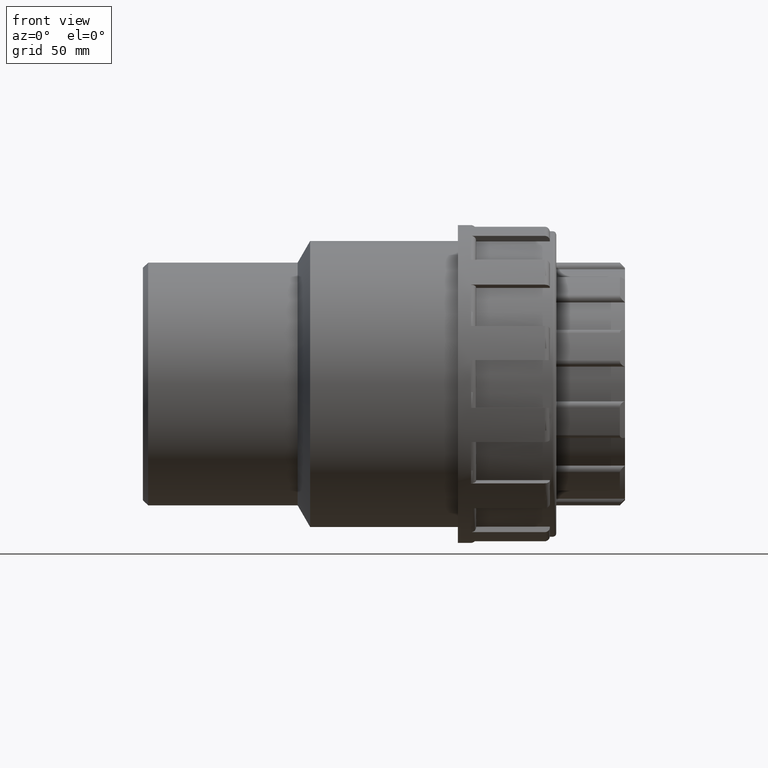
[diagram: clean part render]
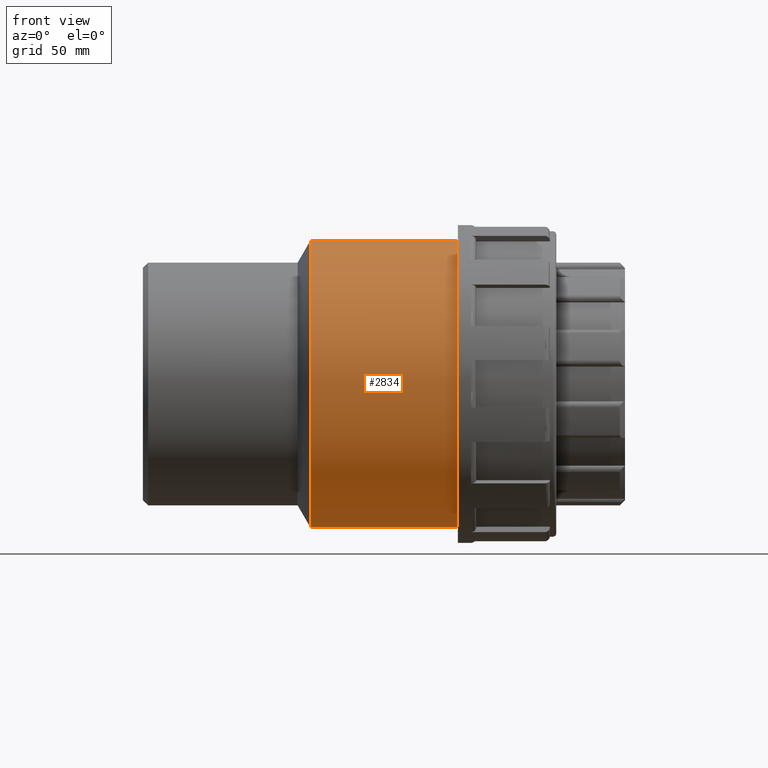
[diagram: same view with one face highlighted and labeled with its STEP entity id]
A machine part, front view. The second image highlights one B-rep face of the part: STEP entity #2834.
In plain terms, the highlighted cylindrical surface (bore or boss wall) has radius 74.25 mm, axis along (1, 0, 0).
Its self-contained STEP definition (entity closure, byte-faithful):
#33=FACE_BOUND('',#496,.T.);
#34=FACE_BOUND('',#497,.T.);
#311=FACE_OUTER_BOUND('',#495,.T.);
#495=EDGE_LOOP('',(#2607));
#496=EDGE_LOOP('',(#2608));
#497=EDGE_LOOP('',(#2609));
#687=CIRCLE('',#3183,74.25);
#688=CIRCLE('',#3185,74.25);
#1039=B_SPLINE_CURVE_WITH_KNOTS('',3,(#4658,#4659,#4660,#4661,#4662,#4663,
#4664,#4665,#4666,#4667,#4668,#4669,#4670,#4671,#4672,#4673,#4674,#4675,
#4676,#4677,#4678,#4679,#4680,#4681,#4682,#4683,#4684,#4685,#4686,#4687,
#4688,#4689,#4690,#4691,#4692,#4693,#4694,#4695,#4696,#4697,#4698,#4699,
#4700,#4701,#4702,#4703,#4704,#4705,#4706,#4707,#4708,#4709,#4710,#4711,
#4712,#4713,#4714,#4715,#4716,#4717,#4718,#4719,#4720,#4721,#4722,#4723),
 .UNSPECIFIED.,.T.,.F.,(4,2,2,2,2,2,2,2,2,2,2,2,2,2,2,2,2,2,2,2,2,2,2,2,
2,2,2,2,2,2,2,2,4),(0.,0.470173499264312,0.940346998528624,1.41052049779294,
1.88069399705725,2.35064942948979,2.82060486192233,3.29056029435487,3.76051572678742,
4.23047115921996,4.7004265916525,5.17038202408504,5.64033745651759,6.1105109557819,
6.58068445504621,7.05085795431052,7.52103145357483,7.99120495283914,8.46137845210346,
8.93155195136777,9.40172545063208,9.87168088306462,10.3416363154972,10.8115917479297,
11.2815471803622,11.7515026127948,12.2214580452273,12.6914134776599,13.1613689100924,
13.6315424093567,14.101715908621,14.5718894078854,15.0420629071497),
 .UNSPECIFIED.);
#1203=VERTEX_POINT('',#4657);
#1360=VERTEX_POINT('',#5625);
#1361=VERTEX_POINT('',#5628);
#1549=EDGE_CURVE('',#1203,#1203,#1039,.T.);
#1778=EDGE_CURVE('',#1360,#1360,#687,.T.);
#1779=EDGE_CURVE('',#1361,#1361,#688,.T.);
#2607=ORIENTED_EDGE('',*,*,#1779,.F.);
#2608=ORIENTED_EDGE('',*,*,#1549,.T.);
#2609=ORIENTED_EDGE('',*,*,#1778,.T.);
#2671=CYLINDRICAL_SURFACE('',#3184,74.25);
#2834=ADVANCED_FACE('',(#311,#33,#34),#2671,.T.);
#3183=AXIS2_PLACEMENT_3D('',#5626,#4042,#4043);
#3184=AXIS2_PLACEMENT_3D('',#5627,#4044,#4045);
#3185=AXIS2_PLACEMENT_3D('',#5629,#4046,#4047);
#4042=DIRECTION('center_axis',(1.,0.,0.));
#4043=DIRECTION('ref_axis',(0.,0.,-1.));
#4044=DIRECTION('center_axis',(1.,0.,0.));
#4045=DIRECTION('ref_axis',(0.,1.,0.));
#4046=DIRECTION('center_axis',(1.,0.,0.));
#4047=DIRECTION('ref_axis',(0.,0.,-1.));
#4657=CARTESIAN_POINT('',(-8.32667268468867E-16,70.0035713374682,-24.75));
#4658=CARTESIAN_POINT('Ctrl Pts',(-2.77555756156289E-16,70.0035713374682,
-24.75));
#4659=CARTESIAN_POINT('Ctrl Pts',(1.56724499754771,70.0035713374682,-24.75));
#4660=CARTESIAN_POINT('Ctrl Pts',(3.18376970608378,70.0576647732943,-24.5987409437415));
#4661=CARTESIAN_POINT('Ctrl Pts',(6.39124199787783,70.2765108544942,-23.9663612477396));
#4662=CARTESIAN_POINT('Ctrl Pts',(7.98224068340491,70.4410415860146,-23.4854230386154));
#4663=CARTESIAN_POINT('Ctrl Pts',(11.0271243637703,70.8506990059166,-22.2189973220399));
#4664=CARTESIAN_POINT('Ctrl Pts',(12.4836636260569,71.0957087458684,-21.4325052408166));
#4665=CARTESIAN_POINT('Ctrl Pts',(15.1744177632563,71.6171829848294,-19.6196632020577));
#4666=CARTESIAN_POINT('Ctrl Pts',(16.4086295615542,71.8931169431347,-18.5931561071799));
#4667=CARTESIAN_POINT('Ctrl Pts',(18.5926495146311,72.422819587546,-16.409136154103));
#4668=CARTESIAN_POINT('Ctrl Pts',(19.6190956243013,72.6956131550973,-15.1751641685197));
#4669=CARTESIAN_POINT('Ctrl Pts',(21.432158273023,73.2057420358075,-12.4842746084587));
#4670=CARTESIAN_POINT('Ctrl Pts',(22.218909564758,73.4426132055707,-11.0273598585134));
#4671=CARTESIAN_POINT('Ctrl Pts',(23.485626131503,73.8357103291938,-7.9817278836486));
#4672=CARTESIAN_POINT('Ctrl Pts',(23.9665974161252,73.9919494478968,-6.39036766522285));
#4673=CARTESIAN_POINT('Ctrl Pts',(24.5988714303945,74.1991594766344,-3.18278415211122));
#4674=CARTESIAN_POINT('Ctrl Pts',(24.75,74.25,-1.56651810810847));
#4675=CARTESIAN_POINT('Ctrl Pts',(24.75,74.25,1.56651810810847));
#4676=CARTESIAN_POINT('Ctrl Pts',(24.5988714303945,74.1991594766344,3.18278415211122));
#4677=CARTESIAN_POINT('Ctrl Pts',(23.9665974161252,73.9919494478968,6.39036766522285));
#4678=CARTESIAN_POINT('Ctrl Pts',(23.485626131503,73.8357103291938,7.9817278836486));
#4679=CARTESIAN_POINT('Ctrl Pts',(22.218909564758,73.4426132055707,11.0273598585134));
#4680=CARTESIAN_POINT('Ctrl Pts',(21.432158273023,73.2057420358075,12.4842746084587));
#4681=CARTESIAN_POINT('Ctrl Pts',(19.6190956243013,72.6956131550973,15.1751641685197));
#4682=CARTESIAN_POINT('Ctrl Pts',(18.5926495146311,72.422819587546,16.409136154103));
#4683=CARTESIAN_POINT('Ctrl Pts',(16.4086295615542,71.8931169431347,18.5931561071799));
#4684=CARTESIAN_POINT('Ctrl Pts',(15.1744177632563,71.6171829848294,19.6196632020577));
#4685=CARTESIAN_POINT('Ctrl Pts',(12.4836636260569,71.0957087458684,21.4325052408166));
#4686=CARTESIAN_POINT('Ctrl Pts',(11.0271243637703,70.8506990059166,22.2189973220399));
#4687=CARTESIAN_POINT('Ctrl Pts',(7.98224068340491,70.4410415860146,23.4854230386154));
#4688=CARTESIAN_POINT('Ctrl Pts',(6.39124199787782,70.2765108544942,23.9663612477396));
#4689=CARTESIAN_POINT('Ctrl Pts',(3.18376970608377,70.0576647732943,24.5987409437415));
#4690=CARTESIAN_POINT('Ctrl Pts',(1.56724499754771,70.0035713374682,24.75));
#4691=CARTESIAN_POINT('Ctrl Pts',(-1.56724499754771,70.0035713374682,24.75));
#4692=CARTESIAN_POINT('Ctrl Pts',(-3.18376970608377,70.0576647732943,24.5987409437415));
#4693=CARTESIAN_POINT('Ctrl Pts',(-6.39124199787782,70.2765108544942,23.9663612477396));
#4694=CARTESIAN_POINT('Ctrl Pts',(-7.98224068340491,70.4410415860146,23.4854230386154));
#4695=CARTESIAN_POINT('Ctrl Pts',(-11.0271243637703,70.8506990059166,22.2189973220399));
#4696=CARTESIAN_POINT('Ctrl Pts',(-12.4836636260569,71.0957087458684,21.4325052408166));
#4697=CARTESIAN_POINT('Ctrl Pts',(-15.1744177632563,71.6171829848294,19.6196632020577));
#4698=CARTESIAN_POINT('Ctrl Pts',(-16.4086295615542,71.8931169431347,18.5931561071799));
#4699=CARTESIAN_POINT('Ctrl Pts',(-18.5926495146311,72.422819587546,16.409136154103));
#4700=CARTESIAN_POINT('Ctrl Pts',(-19.6190956243013,72.6956131550973,15.1751641685197));
#4701=CARTESIAN_POINT('Ctrl Pts',(-21.432158273023,73.2057420358075,12.4842746084586));
#4702=CARTESIAN_POINT('Ctrl Pts',(-22.218909564758,73.4426132055707,11.0273598585134));
#4703=CARTESIAN_POINT('Ctrl Pts',(-23.485626131503,73.8357103291938,7.9817278836486));
#4704=CARTESIAN_POINT('Ctrl Pts',(-23.9665974161252,73.9919494478968,6.39036766522285));
#4705=CARTESIAN_POINT('Ctrl Pts',(-24.5988714303945,74.1991594766344,3.18278415211122));
#4706=CARTESIAN_POINT('Ctrl Pts',(-24.75,74.25,1.56651810810848));
#4707=CARTESIAN_POINT('Ctrl Pts',(-24.75,74.25,-1.56651810810847));
#4708=CARTESIAN_POINT('Ctrl Pts',(-24.5988714303945,74.1991594766344,-3.18278415211122));
#4709=CARTESIAN_POINT('Ctrl Pts',(-23.9665974161252,73.9919494478968,-6.39036766522284));
#4710=CARTESIAN_POINT('Ctrl Pts',(-23.485626131503,73.8357103291938,-7.98172788364859));
#4711=CARTESIAN_POINT('Ctrl Pts',(-22.218909564758,73.4426132055707,-11.0273598585134));
#4712=CARTESIAN_POINT('Ctrl Pts',(-21.4321582730231,73.2057420358075,-12.4842746084586));
#4713=CARTESIAN_POINT('Ctrl Pts',(-19.6190956243013,72.6956131550973,-15.1751641685197));
#4714=CARTESIAN_POINT('Ctrl Pts',(-18.5926495146311,72.422819587546,-16.409136154103));
#4715=CARTESIAN_POINT('Ctrl Pts',(-16.4086295615543,71.8931169431347,-18.5931561071799));
#4716=CARTESIAN_POINT('Ctrl Pts',(-15.1744177632563,71.6171829848294,-19.6196632020577));
#4717=CARTESIAN_POINT('Ctrl Pts',(-12.4836636260569,71.0957087458684,-21.4325052408166));
#4718=CARTESIAN_POINT('Ctrl Pts',(-11.0271243637703,70.8506990059166,-22.2189973220399));
#4719=CARTESIAN_POINT('Ctrl Pts',(-7.98224068340491,70.4410415860146,-23.4854230386154));
#4720=CARTESIAN_POINT('Ctrl Pts',(-6.39124199787783,70.2765108544942,-23.9663612477396));
#4721=CARTESIAN_POINT('Ctrl Pts',(-3.18376970608378,70.0576647732943,-24.5987409437415));
#4722=CARTESIAN_POINT('Ctrl Pts',(-1.56724499754771,70.0035713374682,-24.75));
#4723=CARTESIAN_POINT('Ctrl Pts',(0.,70.0035713374682,-24.75));
#5625=CARTESIAN_POINT('',(-38.3,74.25,0.));
#5626=CARTESIAN_POINT('Origin',(-38.3,0.,0.));
#5627=CARTESIAN_POINT('Origin',(0.,0.,0.));
#5628=CARTESIAN_POINT('',(38.3,74.25,0.));
#5629=CARTESIAN_POINT('Origin',(38.3,0.,0.));